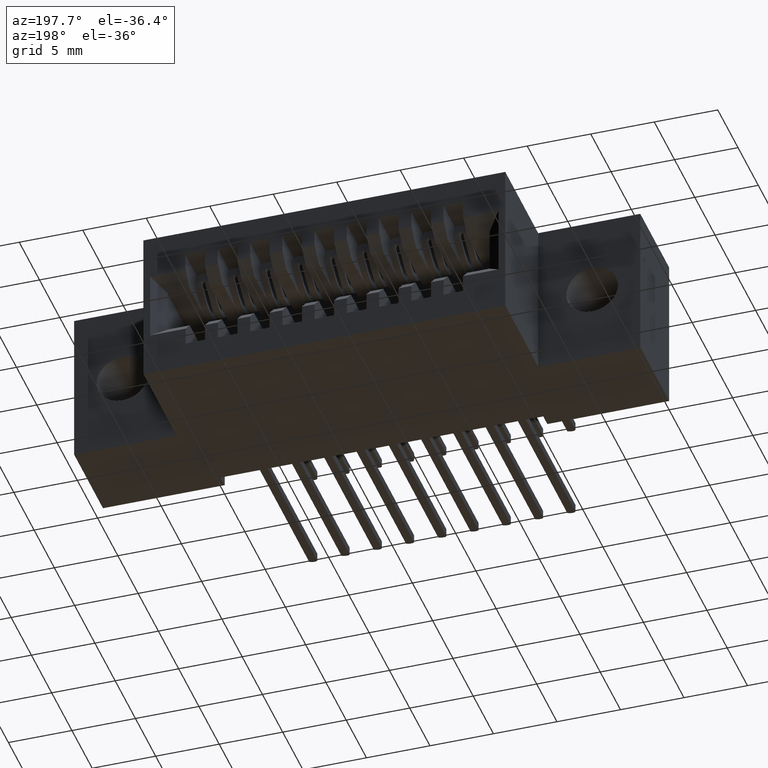
[diagram: clean part render]
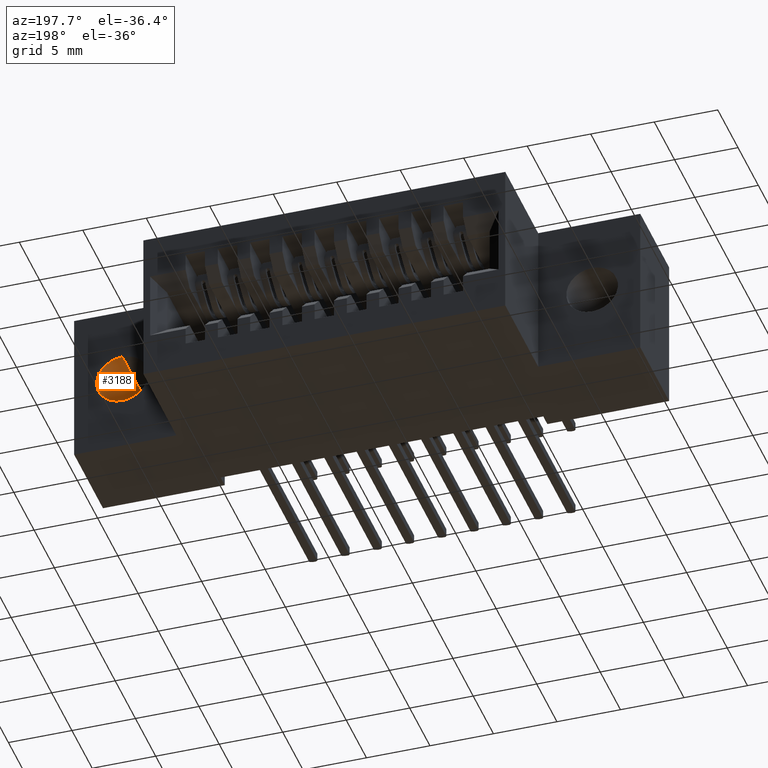
[diagram: same view with one face highlighted and labeled with its STEP entity id]
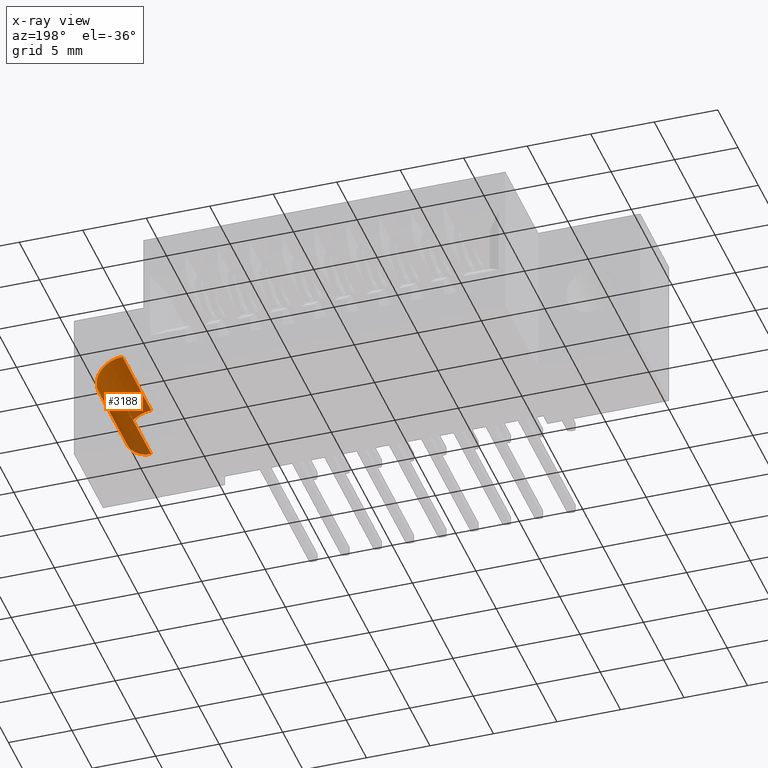
[diagram: x-ray of the same camera — body ghosted, the highlighted face saturated]
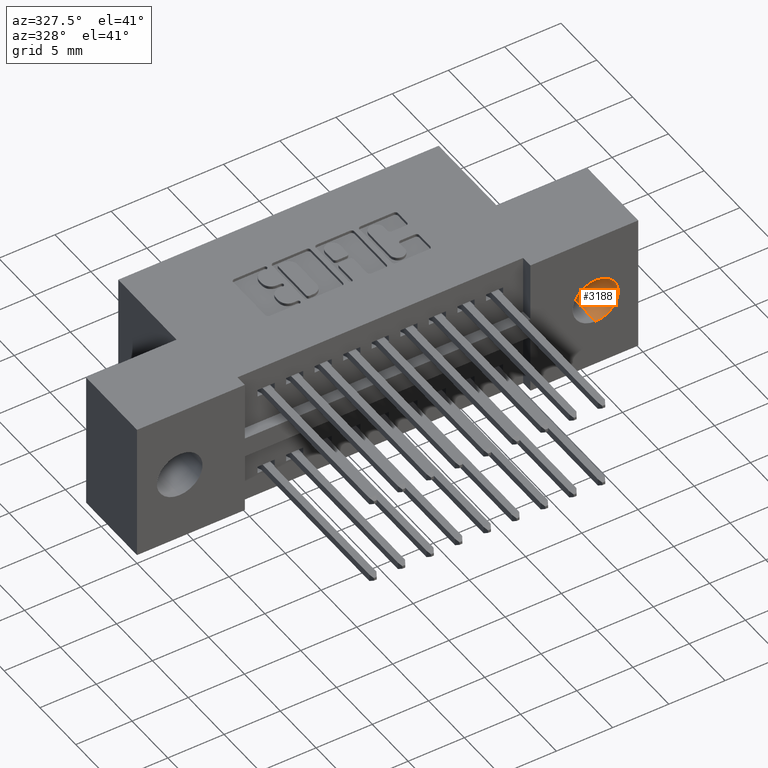
[diagram: same view with one face highlighted and labeled with its STEP entity id]
A machine part, auxiliary view. The second image highlights one B-rep face of the part: STEP entity #3188.
The next image is the same camera in x-ray: the body ghosted, the highlighted face saturated — about 29% of this face is hidden behind the body in this view.
A second angle (auxiliary view) of the same face is appended — the face is thin or edge-on in the first view.
In plain terms, the highlighted cylindrical surface (edge-blend (fillet) strip) has radius 2.032 mm, axis along (0, 1, 0).
Its self-contained STEP definition (entity closure, byte-faithful):
#190 = VERTEX_POINT ( 'NONE', #4848 ) ;
#236 = CIRCLE ( 'NONE', #6107, 0.08000000000000000200 ) ;
#917 = LINE ( 'NONE', #3357, #7838 ) ;
#1211 = ORIENTED_EDGE ( 'NONE', *, *, #2750, .T. ) ;
#1340 = AXIS2_PLACEMENT_3D ( 'NONE', #5618, #4086, #1684 ) ;
#1684 = DIRECTION ( 'NONE',  ( 0.0000000000000000000, 0.0000000000000000000, 1.000000000000000000 ) ) ;
#1898 = VERTEX_POINT ( 'NONE', #8899 ) ;
#2002 = EDGE_CURVE ( 'NONE', #5408, #7000, #4393, .T. ) ;
#2750 = EDGE_CURVE ( 'NONE', #5408, #190, #7507, .T. ) ;
#2933 = CYLINDRICAL_SURFACE ( 'NONE', #1340, 0.08000000000000000200 ) ;
#2971 = DIRECTION ( 'NONE',  ( 0.0000000000000000000, 1.000000000000000000, -0.0000000000000000000 ) ) ;
#3188 = ADVANCED_FACE ( 'NONE', ( #6815 ), #2933, .F. ) ;
#3271 = EDGE_CURVE ( 'NONE', #190, #1898, #236, .T. ) ;
#3308 = CARTESIAN_POINT ( 'NONE',  ( 1.605500000000000400, 0.0000000000000000000, -0.1650000000000001500 ) ) ;
#3357 = CARTESIAN_POINT ( 'NONE',  ( 1.605500000000000400, 0.0000000000000000000, -0.3250000000000001800 ) ) ;
#3981 = ORIENTED_EDGE ( 'NONE', *, *, #8160, .F. ) ;
#4086 = DIRECTION ( 'NONE',  ( -0.0000000000000000000, 1.000000000000000000, -0.0000000000000000000 ) ) ;
#4393 = CIRCLE ( 'NONE', #6162, 0.08000000000000000200 ) ;
#4848 = CARTESIAN_POINT ( 'NONE',  ( 1.605500000000000400, 0.2799999999999999700, -0.1650000000000001500 ) ) ;
#5105 = VECTOR ( 'NONE', #5581, 39.37007874015748100 ) ;
#5166 = DIRECTION ( 'NONE',  ( 0.0000000000000000000, 1.000000000000000000, -0.0000000000000000000 ) ) ;
#5199 = CARTESIAN_POINT ( 'NONE',  ( 1.605500000000000400, 0.0000000000000000000, -0.1650000000000001500 ) ) ;
#5408 = VERTEX_POINT ( 'NONE', #5199 ) ;
#5581 = DIRECTION ( 'NONE',  ( -0.0000000000000000000, 1.000000000000000000, -0.0000000000000000000 ) ) ;
#5618 = CARTESIAN_POINT ( 'NONE',  ( 1.605500000000000400, 0.0000000000000000000, -0.2450000000000001600 ) ) ;
#5655 = ORIENTED_EDGE ( 'NONE', *, *, #3271, .T. ) ;
#6019 = DIRECTION ( 'NONE',  ( 0.0000000000000000000, 0.0000000000000000000, -1.000000000000000000 ) ) ;
#6107 = AXIS2_PLACEMENT_3D ( 'NONE', #7426, #5166, #8290 ) ;
#6162 = AXIS2_PLACEMENT_3D ( 'NONE', #7562, #2971, #6019 ) ;
#6815 = FACE_OUTER_BOUND ( 'NONE', #7227, .T. ) ;
#7000 = VERTEX_POINT ( 'NONE', #8841 ) ;
#7227 = EDGE_LOOP ( 'NONE', ( #3981, #9885, #1211, #5655 ) ) ;
#7426 = CARTESIAN_POINT ( 'NONE',  ( 1.605500000000000400, 0.2799999999999999700, -0.2450000000000001600 ) ) ;
#7507 = LINE ( 'NONE', #3308, #5105 ) ;
#7562 = CARTESIAN_POINT ( 'NONE',  ( 1.605500000000000400, 0.0000000000000000000, -0.2450000000000001600 ) ) ;
#7838 = VECTOR ( 'NONE', #9429, 39.37007874015748100 ) ;
#8160 = EDGE_CURVE ( 'NONE', #7000, #1898, #917, .T. ) ;
#8290 = DIRECTION ( 'NONE',  ( 0.0000000000000000000, 0.0000000000000000000, -1.000000000000000000 ) ) ;
#8841 = CARTESIAN_POINT ( 'NONE',  ( 1.605500000000000400, 0.0000000000000000000, -0.3250000000000001800 ) ) ;
#8899 = CARTESIAN_POINT ( 'NONE',  ( 1.605500000000000400, 0.2799999999999999700, -0.3250000000000001800 ) ) ;
#9429 = DIRECTION ( 'NONE',  ( -0.0000000000000000000, 1.000000000000000000, -0.0000000000000000000 ) ) ;
#9885 = ORIENTED_EDGE ( 'NONE', *, *, #2002, .F. ) ;